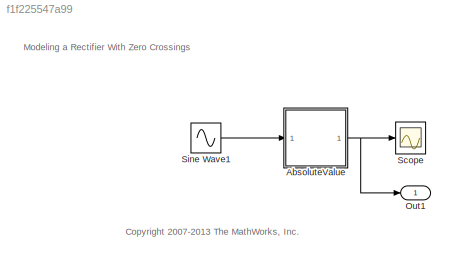
MODEL slx_f1f225547a99
KIND model
CONFIG AbsTol = auto
CONFIG EnableMultiTasking = on
CONFIG FixedStep = auto
CONFIG MaxStep = .2
CONFIG MinStep = auto
CONFIG RelTol = 1e-3
CONFIG SampleTimeConstraint = Unconstrained
CONFIG Solver = VariableStepDiscrete
CONFIG SolverName = VariableStepDiscrete
CONFIG StartTime = 0.0
CONFIG StopTime = 20
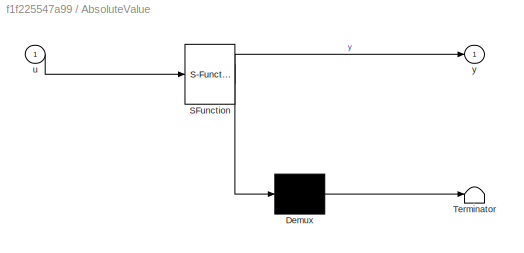
BLOCK [SubSystem] AbsoluteValue
  ErrorFcn = Stateflow.Translate.translate
  PermitHierarchicalResolution = ExplicitOnly
  Ports = [1, 1]
  RequestExecContextInheritance = off
  SFBlockType = Chart
  TreatAsAtomicUnit = on
  Variant = off
BLOCK [Demux] AbsoluteValue/ Demux 
  Outputs = 1
  Ports = [1, 1]
BLOCK [S-Function] AbsoluteValue/ SFunction 
  EnableBusSupport = off
  FunctionName = sf_sfun
  PortCounts = [1 2]
  Ports = [1, 2]
  SFcnIsStateOwnerBlock = off
  SFunctionDeploymentMode = off
  Tag = Stateflow S-Function sf_abs 1
BLOCK [Terminator] AbsoluteValue/ Terminator 
BLOCK [Inport] AbsoluteValue/u
  IconDisplay = Port number
BLOCK [Outport] AbsoluteValue/y
  IconDisplay = Port number
BLOCK [Outport] Out1
  IconDisplay = Port number
BLOCK [Scope] Scope
  NumInputPorts = 1
  Ports = [1]
  ScopeSpecificationString = Simulink.scopes.TimeScopeBlockCfg('CurrentConfiguration', extmgr.ConfigurationSet(extmgr.Configuration('Core','General UI',true),extmgr.Configuration('Core','Source UI',true),extmgr.Configuration('Sources','WiredSimulink',true,'DataLoggingSaveFormat','StructureWithTime'),extmgr.Configuration('Visuals','Time Domain',true,'DisplayPropertyDefaults',struct('MinYLimReal','-10','MaxYLimReal','10','YLabe...<+962ch>
BLOCK [Sin] Sine Wave1
  Ports = [0, 1]
  SampleTime = 0
ANNOTATION (root): <copyright redacted>
ANNOTATION (root): Modeling a Rectifier With Zero Crossings
NET AbsoluteValue:1 -> Out1:1, Scope:1
LINE Sine Wave1:1 -> AbsoluteValue:1
note: NET lines group one-source signal fan-out (src -> all destinations, sorted); 1:1 wires keep LINE
CHART AbsoluteValue states=2 transitions=6
  STATE_LABEL 'N\ndu: y = -u;'
  STATE_LABEL 'P\ndu: y = u;'
